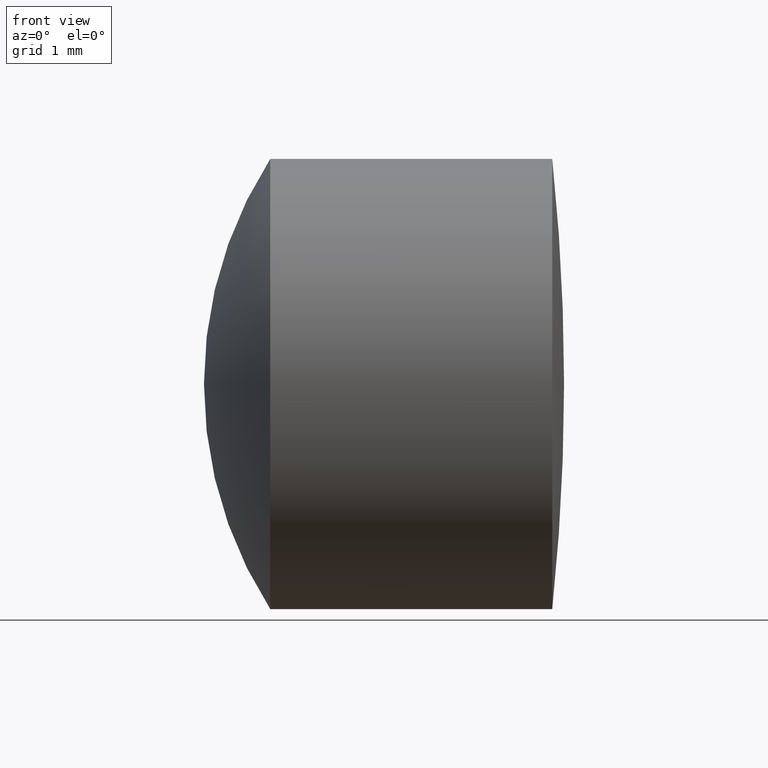
[diagram: clean part render]
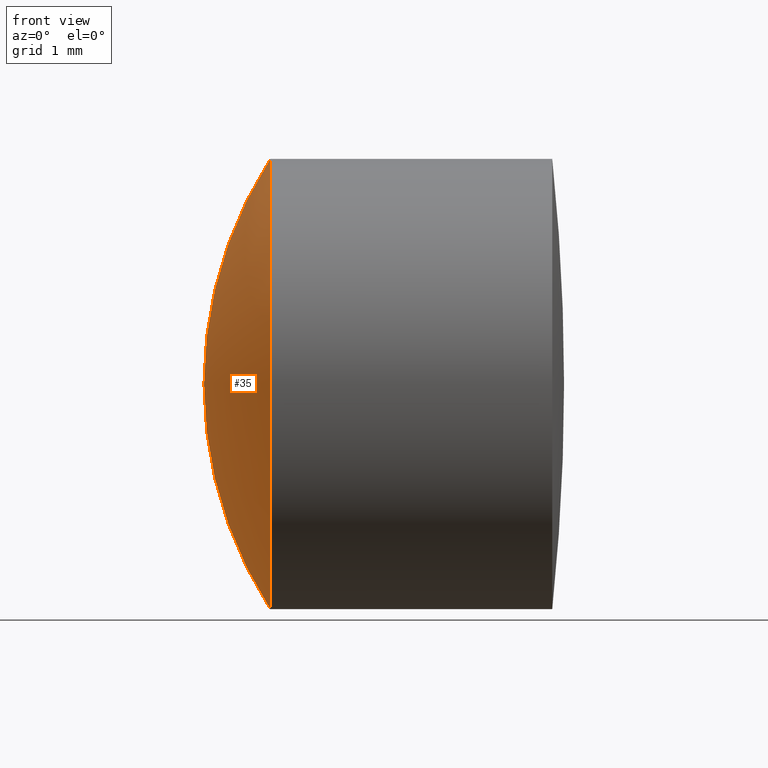
[diagram: same view with one face highlighted and labeled with its STEP entity id]
A machine part, front view. The second image highlights one B-rep face of the part: STEP entity #35.
In plain terms, the highlighted spherical surface has radius 4.61 mm.
Its self-contained STEP definition (entity closure, byte-faithful):
#3 = EDGE_CURVE ( 'NONE', #171, #232, #23, .T. ) ;
#4 = DIRECTION ( 'NONE',  ( 0.0000000000000000000, 0.0000000000000000000, -1.000000000000000000 ) ) ;
#17 = CARTESIAN_POINT ( 'NONE',  ( 4.496022484758546200, 0.0000000000000000000, 3.707415142945429000E-030 ) ) ;
#23 = CIRCLE ( 'NONE', #296, 2.499999999999999600 ) ;
#35 = ADVANCED_FACE ( 'NONE', ( #286 ), #125, .T. ) ;
#37 = DIRECTION ( 'NONE',  ( 0.0000000000000000000, 0.0000000000000000000, 1.000000000000000000 ) ) ;
#38 = ORIENTED_EDGE ( 'NONE', *, *, #116, .T. ) ;
#53 = CIRCLE ( 'NONE', #135, 4.609999999999999400 ) ;
#59 = VERTEX_POINT ( 'NONE', #161 ) ;
#80 = CARTESIAN_POINT ( 'NONE',  ( 0.6227680392050399800, 0.0000000000000000000, 0.0000000000000000000 ) ) ;
#90 = CARTESIAN_POINT ( 'NONE',  ( 0.6227680392050400900, 0.0000000000000000000, -2.499999999999999600 ) ) ;
#94 = CARTESIAN_POINT ( 'NONE',  ( 4.496022484758546200, 0.0000000000000000000, 3.707415142945429000E-030 ) ) ;
#116 = EDGE_CURVE ( 'NONE', #232, #59, #53, .T. ) ;
#125 = SPHERICAL_SURFACE ( 'NONE', #191, 4.609999999999999400 ) ;
#135 = AXIS2_PLACEMENT_3D ( 'NONE', #17, #186, #221 ) ;
#140 = CARTESIAN_POINT ( 'NONE',  ( 0.6227680392050400900, -3.061616997868382600E-016, 2.499999999999999600 ) ) ;
#146 = DIRECTION ( 'NONE',  ( -1.000000000000000000, -0.0000000000000000000, -0.0000000000000000000 ) ) ;
#147 = CIRCLE ( 'NONE', #325, 4.609999999999999400 ) ;
#157 = CARTESIAN_POINT ( 'NONE',  ( 4.496022484758546200, 0.0000000000000000000, 3.707415142945429000E-030 ) ) ;
#161 = CARTESIAN_POINT ( 'NONE',  ( -0.1139775152414531500, 0.0000000000000000000, -2.822810872034612000E-016 ) ) ;
#171 = VERTEX_POINT ( 'NONE', #90 ) ;
#186 = DIRECTION ( 'NONE',  ( 0.0000000000000000000, -1.000000000000000000, -1.224646799147353200E-016 ) ) ;
#191 = AXIS2_PLACEMENT_3D ( 'NONE', #157, #271, #4 ) ;
#205 = EDGE_LOOP ( 'NONE', ( #258, #38, #269 ) ) ;
#221 = DIRECTION ( 'NONE',  ( 0.0000000000000000000, 1.224646799147353200E-016, -1.000000000000000000 ) ) ;
#232 = VERTEX_POINT ( 'NONE', #140 ) ;
#258 = ORIENTED_EDGE ( 'NONE', *, *, #3, .T. ) ;
#269 = ORIENTED_EDGE ( 'NONE', *, *, #280, .F. ) ;
#271 = DIRECTION ( 'NONE',  ( -0.0000000000000000000, -1.000000000000000000, -0.0000000000000000000 ) ) ;
#280 = EDGE_CURVE ( 'NONE', #171, #59, #147, .T. ) ;
#286 = FACE_OUTER_BOUND ( 'NONE', #205, .T. ) ;
#296 = AXIS2_PLACEMENT_3D ( 'NONE', #80, #146, #37 ) ;
#297 = DIRECTION ( 'NONE',  ( 0.0000000000000000000, 1.000000000000000000, -0.0000000000000000000 ) ) ;
#325 = AXIS2_PLACEMENT_3D ( 'NONE', #94, #297, #343 ) ;
#343 = DIRECTION ( 'NONE',  ( 0.0000000000000000000, 0.0000000000000000000, 1.000000000000000000 ) ) ;